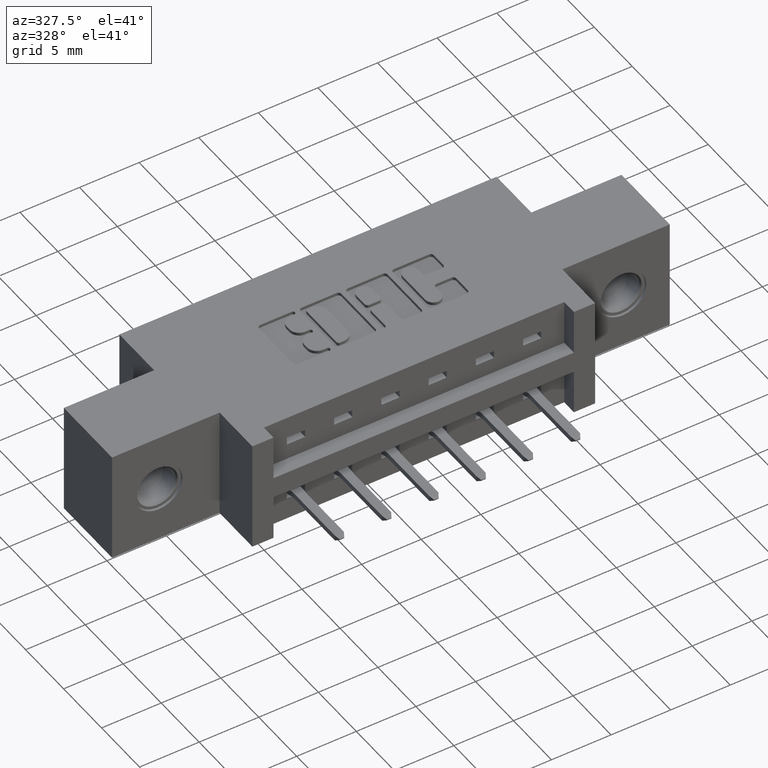
[diagram: clean part render]
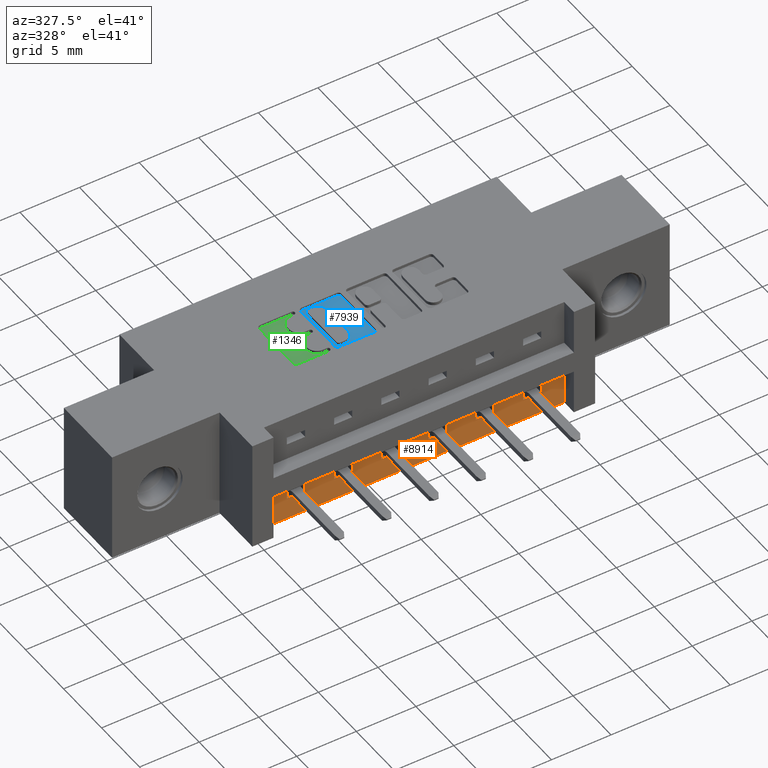
[diagram: same view with three faces highlighted in distinct colors, each labeled with its STEP entity id]
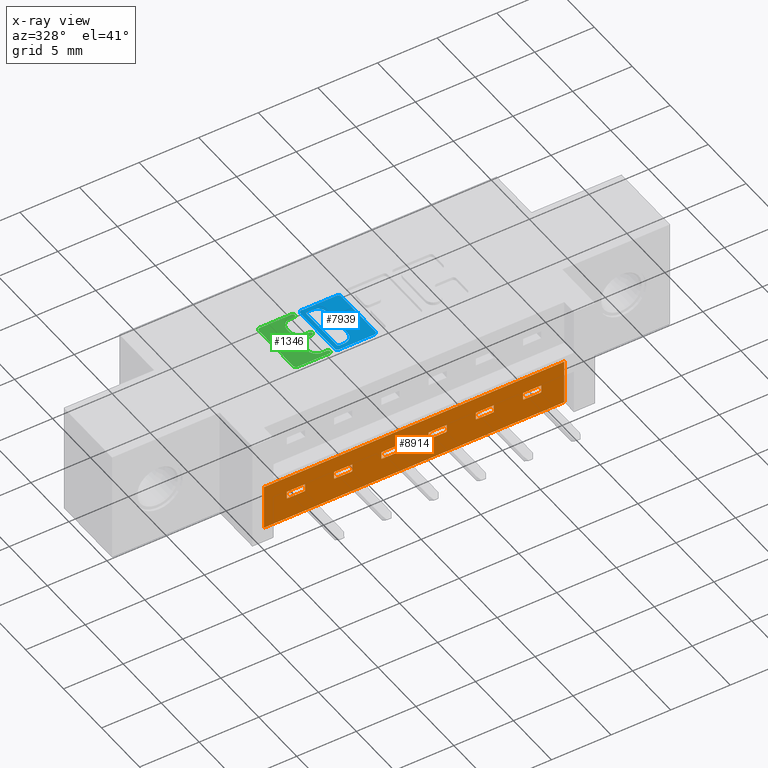
[diagram: x-ray of the same camera — body ghosted, the three highlighted faces saturated]
A machine part, auxiliary view with three faces highlighted in distinct colors.
The next image is the same camera in x-ray (body ghosted, the three faces saturated) — at least one of them is partly hidden behind the body in this view.
Their STEP definitions:

[orange] entity #8914 — the highlighted planar face has unit normal (0, -1, 0).
#85 = ORIENTED_EDGE ( 'NONE', *, *, #4961, .F. ) ;
#175 = FACE_BOUND ( 'NONE', #7844, .T. ) ;
#189 = EDGE_CURVE ( 'NONE', #8327, #6333, #3907, .T. ) ;
#239 = VECTOR ( 'NONE', #3578, 39.37007874015748100 ) ;
#342 = LINE ( 'NONE', #4600, #849 ) ;
#393 = CARTESIAN_POINT ( 'NONE',  ( 1.184999999999999800, 0.05000000000000001000, -0.2725000000000000800 ) ) ;
#444 = ORIENTED_EDGE ( 'NONE', *, *, #1200, .T. ) ;
#453 = ORIENTED_EDGE ( 'NONE', *, *, #10544, .F. ) ;
#467 = VECTOR ( 'NONE', #9566, 39.37007874015748100 ) ;
#469 = VECTOR ( 'NONE', #641, 39.37007874015748100 ) ;
#521 = CARTESIAN_POINT ( 'NONE',  ( 0.5610000000000000500, 0.05000000000000000300, -0.3700000000000000000 ) ) ;
#583 = DIRECTION ( 'NONE',  ( 0.0000000000000000000, 0.0000000000000000000, 1.000000000000000000 ) ) ;
#599 = LINE ( 'NONE', #3869, #5503 ) ;
#641 = DIRECTION ( 'NONE',  ( 0.0000000000000000000, 0.0000000000000000000, 1.000000000000000000 ) ) ;
#723 = CARTESIAN_POINT ( 'NONE',  ( 0.9689999999999998600, 0.05000000000000000300, -0.3700000000000000000 ) ) ;
#728 = EDGE_CURVE ( 'NONE', #9465, #3783, #7676, .T. ) ;
#781 = VECTOR ( 'NONE', #2667, 39.37007874015748100 ) ;
#788 = FACE_BOUND ( 'NONE', #4320, .T. ) ;
#812 = VERTEX_POINT ( 'NONE', #6291 ) ;
#849 = VECTOR ( 'NONE', #2964, 39.37007874015748100 ) ;
#906 = CARTESIAN_POINT ( 'NONE',  ( 1.340999999999999700, 0.05000000000000000300, -0.3700000000000000000 ) ) ;
#922 = DIRECTION ( 'NONE',  ( -1.000000000000000000, 0.0000000000000000000, 0.0000000000000000000 ) ) ;
#941 = VERTEX_POINT ( 'NONE', #6705 ) ;
#959 = VERTEX_POINT ( 'NONE', #8199 ) ;
#1058 = EDGE_CURVE ( 'NONE', #7039, #1923, #1563, .T. ) ;
#1082 = LINE ( 'NONE', #1293, #4989 ) ;
#1083 = CARTESIAN_POINT ( 'NONE',  ( 0.8730000000000000000, 0.05000000000000001000, -0.2725000000000000800 ) ) ;
#1200 = EDGE_CURVE ( 'NONE', #1526, #7863, #4757, .T. ) ;
#1241 = VERTEX_POINT ( 'NONE', #3381 ) ;
#1256 = VECTOR ( 'NONE', #7396, 39.37007874015748100 ) ;
#1290 = CARTESIAN_POINT ( 'NONE',  ( 0.8730000000000000000, 0.05000000000000000300, -0.2975000000000001000 ) ) ;
#1293 = CARTESIAN_POINT ( 'NONE',  ( 1.417000000000000700, 0.05000000000000000300, -0.2975000000000000400 ) ) ;
#1312 = CARTESIAN_POINT ( 'NONE',  ( 0.8730000000000000000, 0.05000000000000000300, -0.3700000000000000000 ) ) ;
#1358 = VECTOR ( 'NONE', #1429, 39.37007874015748100 ) ;
#1359 = CARTESIAN_POINT ( 'NONE',  ( 0.7170000000000000800, 0.05000000000000000300, -0.3700000000000000000 ) ) ;
#1371 = DIRECTION ( 'NONE',  ( 0.0000000000000000000, 0.0000000000000000000, 1.000000000000000000 ) ) ;
#1411 = CARTESIAN_POINT ( 'NONE',  ( 1.417000000000000700, 0.05000000000000000300, -0.3700000000000000000 ) ) ;
#1429 = DIRECTION ( 'NONE',  ( -1.000000000000000000, 0.0000000000000000000, 0.0000000000000000000 ) ) ;
#1469 = ORIENTED_EDGE ( 'NONE', *, *, #3793, .F. ) ;
#1526 = VERTEX_POINT ( 'NONE', #7257 ) ;
#1541 = VERTEX_POINT ( 'NONE', #10451 ) ;
#1563 = LINE ( 'NONE', #3797, #6028 ) ;
#1586 = LINE ( 'NONE', #1766, #6062 ) ;
#1624 = CARTESIAN_POINT ( 'NONE',  ( 1.028999999999999900, 0.05000000000000000300, -0.2975000000000001000 ) ) ;
#1676 = EDGE_CURVE ( 'NONE', #9972, #812, #7155, .T. ) ;
#1694 = ORIENTED_EDGE ( 'NONE', *, *, #5257, .F. ) ;
#1728 = DIRECTION ( 'NONE',  ( -1.000000000000000000, 0.0000000000000000000, 0.0000000000000000000 ) ) ;
#1766 = CARTESIAN_POINT ( 'NONE',  ( 1.417000000000000700, 0.05000000000000000300, -0.2725000000000000200 ) ) ;
#1795 = LINE ( 'NONE', #9210, #239 ) ;
#1921 = EDGE_CURVE ( 'NONE', #6024, #10306, #9334, .T. ) ;
#1923 = VERTEX_POINT ( 'NONE', #1624 ) ;
#1974 = EDGE_CURVE ( 'NONE', #1923, #6407, #4737, .T. ) ;
#2078 = ORIENTED_EDGE ( 'NONE', *, *, #8127, .T. ) ;
#2114 = VECTOR ( 'NONE', #10157, 39.37007874015748100 ) ;
#2158 = EDGE_CURVE ( 'NONE', #7863, #8327, #1795, .T. ) ;
#2213 = DIRECTION ( 'NONE',  ( 1.000000000000000000, 0.0000000000000000000, 0.0000000000000000000 ) ) ;
#2262 = DIRECTION ( 'NONE',  ( 0.0000000000000000000, -0.0000000000000000000, -1.000000000000000000 ) ) ;
#2283 = LINE ( 'NONE', #10511, #8630 ) ;
#2319 = CARTESIAN_POINT ( 'NONE',  ( 1.028999999999999900, 0.05000000000000000300, -0.3700000000000000000 ) ) ;
#2362 = EDGE_CURVE ( 'NONE', #7039, #4821, #4466, .T. ) ;
#2450 = ORIENTED_EDGE ( 'NONE', *, *, #1974, .F. ) ;
#2469 = EDGE_CURVE ( 'NONE', #3277, #9509, #342, .T. ) ;
#2514 = FACE_BOUND ( 'NONE', #6343, .T. ) ;
#2526 = CARTESIAN_POINT ( 'NONE',  ( 0.4249999999999999900, 0.05000000000000000300, -0.2200000000000000000 ) ) ;
#2550 = VERTEX_POINT ( 'NONE', #8972 ) ;
#2600 = CARTESIAN_POINT ( 'NONE',  ( 1.124999999999999800, 0.05000000000000000300, -0.3700000000000000000 ) ) ;
#2667 = DIRECTION ( 'NONE',  ( 0.0000000000000000000, 0.0000000000000000000, 1.000000000000000000 ) ) ;
#2681 = VECTOR ( 'NONE', #3947, 39.37007874015748100 ) ;
#2724 = EDGE_CURVE ( 'NONE', #941, #9972, #1082, .T. ) ;
#2746 = VECTOR ( 'NONE', #7854, 39.37007874015748100 ) ;
#2798 = EDGE_CURVE ( 'NONE', #6024, #2550, #6865, .T. ) ;
#2867 = CARTESIAN_POINT ( 'NONE',  ( 0.5010000000000001100, 0.05000000000000001000, -0.2725000000000000800 ) ) ;
#2914 = CARTESIAN_POINT ( 'NONE',  ( 0.4249999999999999900, 0.05000000000000000300, -0.3700000000000000000 ) ) ;
#2920 = CARTESIAN_POINT ( 'NONE',  ( 1.280999999999999700, 0.05000000000000001000, -0.2725000000000000200 ) ) ;
#2964 = DIRECTION ( 'NONE',  ( 0.0000000000000000000, 0.0000000000000000000, 1.000000000000000000 ) ) ;
#3029 = CARTESIAN_POINT ( 'NONE',  ( 1.280999999999999700, 0.05000000000000000300, -0.3700000000000000000 ) ) ;
#3166 = ORIENTED_EDGE ( 'NONE', *, *, #2362, .T. ) ;
#3189 = DIRECTION ( 'NONE',  ( 0.0000000000000000000, -1.000000000000000000, 0.0000000000000000000 ) ) ;
#3217 = ORIENTED_EDGE ( 'NONE', *, *, #2724, .F. ) ;
#3277 = VERTEX_POINT ( 'NONE', #8759 ) ;
#3286 = EDGE_CURVE ( 'NONE', #3658, #9509, #3563, .T. ) ;
#3309 = DIRECTION ( 'NONE',  ( 1.000000000000000000, 0.0000000000000000000, 0.0000000000000000000 ) ) ;
#3315 = EDGE_CURVE ( 'NONE', #6333, #1526, #8263, .T. ) ;
#3326 = EDGE_CURVE ( 'NONE', #1241, #9465, #6994, .T. ) ;
#3381 = CARTESIAN_POINT ( 'NONE',  ( 0.7170000000000000800, 0.05000000000000000300, -0.2975000000000001000 ) ) ;
#3563 = LINE ( 'NONE', #4717, #1358 ) ;
#3578 = DIRECTION ( 'NONE',  ( -1.000000000000000000, -0.0000000000000000000, -0.0000000000000000000 ) ) ;
#3634 = CARTESIAN_POINT ( 'NONE',  ( 1.417000000000000700, 0.05000000000000000300, -0.2725000000000000200 ) ) ;
#3658 = VERTEX_POINT ( 'NONE', #7862 ) ;
#3757 = VECTOR ( 'NONE', #922, 39.37007874015748100 ) ;
#3782 = VECTOR ( 'NONE', #3309, 39.37007874015748100 ) ;
#3783 = VERTEX_POINT ( 'NONE', #6366 ) ;
#3793 = EDGE_CURVE ( 'NONE', #3277, #8268, #2283, .T. ) ;
#3797 = CARTESIAN_POINT ( 'NONE',  ( 1.417000000000000700, 0.05000000000000000300, -0.2975000000000001000 ) ) ;
#3869 = CARTESIAN_POINT ( 'NONE',  ( 0.6570000000000000300, 0.05000000000000000300, -0.3700000000000000000 ) ) ;
#3870 = ORIENTED_EDGE ( 'NONE', *, *, #1921, .F. ) ;
#3907 = LINE ( 'NONE', #2914, #7687 ) ;
#3947 = DIRECTION ( 'NONE',  ( 0.0000000000000000000, 0.0000000000000000000, 1.000000000000000000 ) ) ;
#4077 = ORIENTED_EDGE ( 'NONE', *, *, #6735, .F. ) ;
#4186 = CARTESIAN_POINT ( 'NONE',  ( 1.184999999999999800, 0.05000000000000000300, -0.3700000000000000000 ) ) ;
#4228 = EDGE_LOOP ( 'NONE', ( #3217, #6439, #1694, #8819 ) ) ;
#4316 = ORIENTED_EDGE ( 'NONE', *, *, #8039, .F. ) ;
#4320 = EDGE_LOOP ( 'NONE', ( #4464, #3166, #7337, #2450 ) ) ;
#4396 = ORIENTED_EDGE ( 'NONE', *, *, #8298, .F. ) ;
#4464 = ORIENTED_EDGE ( 'NONE', *, *, #1058, .F. ) ;
#4466 = LINE ( 'NONE', #723, #9970 ) ;
#4547 = LINE ( 'NONE', #2600, #781 ) ;
#4581 = DIRECTION ( 'NONE',  ( 0.0000000000000000000, 0.0000000000000000000, 1.000000000000000000 ) ) ;
#4600 = CARTESIAN_POINT ( 'NONE',  ( 0.5010000000000001100, 0.05000000000000000300, -0.3700000000000000000 ) ) ;
#4639 = LINE ( 'NONE', #9937, #3757 ) ;
#4701 = EDGE_CURVE ( 'NONE', #6487, #959, #4547, .T. ) ;
#4717 = CARTESIAN_POINT ( 'NONE',  ( 1.417000000000000700, 0.05000000000000000300, -0.2725000000000000800 ) ) ;
#4737 = LINE ( 'NONE', #2319, #469 ) ;
#4757 = LINE ( 'NONE', #1411, #7289 ) ;
#4821 = VERTEX_POINT ( 'NONE', #5979 ) ;
#4836 = EDGE_LOOP ( 'NONE', ( #3870, #9392, #85, #4316 ) ) ;
#4961 = EDGE_CURVE ( 'NONE', #7479, #2550, #5306, .T. ) ;
#4989 = VECTOR ( 'NONE', #7027, 39.37007874015748100 ) ;
#5005 = DIRECTION ( 'NONE',  ( 0.0000000000000000000, 0.0000000000000000000, 1.000000000000000000 ) ) ;
#5032 = CARTESIAN_POINT ( 'NONE',  ( 1.417000000000000700, 0.05000000000000000300, -0.2975000000000001000 ) ) ;
#5100 = EDGE_CURVE ( 'NONE', #1541, #1241, #8073, .T. ) ;
#5107 = EDGE_CURVE ( 'NONE', #6407, #4821, #1586, .T. ) ;
#5170 = EDGE_LOOP ( 'NONE', ( #5304, #444, #8490, #9422 ) ) ;
#5257 = EDGE_CURVE ( 'NONE', #812, #5297, #7572, .T. ) ;
#5271 = VECTOR ( 'NONE', #8776, 39.37007874015748100 ) ;
#5297 = VERTEX_POINT ( 'NONE', #2920 ) ;
#5304 = ORIENTED_EDGE ( 'NONE', *, *, #3315, .T. ) ;
#5306 = LINE ( 'NONE', #3634, #2114 ) ;
#5321 = AXIS2_PLACEMENT_3D ( 'NONE', #6307, #3189, #2262 ) ;
#5385 = EDGE_CURVE ( 'NONE', #941, #5297, #8719, .T. ) ;
#5483 = DIRECTION ( 'NONE',  ( 0.0000000000000000000, 0.0000000000000000000, 1.000000000000000000 ) ) ;
#5503 = VECTOR ( 'NONE', #583, 39.37007874015748100 ) ;
#5660 = VECTOR ( 'NONE', #4581, 39.37007874015748100 ) ;
#5742 = VECTOR ( 'NONE', #8720, 39.37007874015748100 ) ;
#5766 = VECTOR ( 'NONE', #10508, 39.37007874015748100 ) ;
#5926 = VERTEX_POINT ( 'NONE', #393 ) ;
#5979 = CARTESIAN_POINT ( 'NONE',  ( 0.9689999999999998600, 0.05000000000000001000, -0.2725000000000000800 ) ) ;
#6024 = VERTEX_POINT ( 'NONE', #6214 ) ;
#6028 = VECTOR ( 'NONE', #8531, 39.37007874015748100 ) ;
#6062 = VECTOR ( 'NONE', #1728, 39.37007874015748100 ) ;
#6098 = EDGE_CURVE ( 'NONE', #8268, #3658, #6539, .T. ) ;
#6214 = CARTESIAN_POINT ( 'NONE',  ( 0.8129999999999999400, 0.05000000000000014800, -0.2975000000000001000 ) ) ;
#6229 = DIRECTION ( 'NONE',  ( -1.000000000000000000, 0.0000000000000000000, 0.0000000000000000000 ) ) ;
#6283 = LINE ( 'NONE', #9695, #5271 ) ;
#6291 = CARTESIAN_POINT ( 'NONE',  ( 1.340999999999999700, 0.05000000000000001000, -0.2725000000000000200 ) ) ;
#6307 = CARTESIAN_POINT ( 'NONE',  ( 1.417000000000000700, 0.05000000000000000300, -0.3700000000000000000 ) ) ;
#6318 = FACE_BOUND ( 'NONE', #4228, .T. ) ;
#6333 = VERTEX_POINT ( 'NONE', #7215 ) ;
#6343 = EDGE_LOOP ( 'NONE', ( #9918, #2078, #9357, #7222 ) ) ;
#6364 = VECTOR ( 'NONE', #1371, 39.37007874015748100 ) ;
#6366 = CARTESIAN_POINT ( 'NONE',  ( 0.6570000000000000300, 0.05000000000000001000, -0.2725000000000000800 ) ) ;
#6405 = CARTESIAN_POINT ( 'NONE',  ( 1.340999999999999700, 0.05000000000000000300, -0.2975000000000000400 ) ) ;
#6407 = VERTEX_POINT ( 'NONE', #10528 ) ;
#6439 = ORIENTED_EDGE ( 'NONE', *, *, #5385, .T. ) ;
#6487 = VERTEX_POINT ( 'NONE', #9108 ) ;
#6539 = LINE ( 'NONE', #521, #5660 ) ;
#6705 = CARTESIAN_POINT ( 'NONE',  ( 1.280999999999999700, 0.05000000000000014800, -0.2975000000000000400 ) ) ;
#6735 = EDGE_CURVE ( 'NONE', #9224, #5926, #6793, .T. ) ;
#6793 = LINE ( 'NONE', #4186, #9235 ) ;
#6865 = LINE ( 'NONE', #8697, #6364 ) ;
#6961 = DIRECTION ( 'NONE',  ( -0.0000000000000000000, -0.0000000000000000000, -1.000000000000000000 ) ) ;
#6987 = ORIENTED_EDGE ( 'NONE', *, *, #4701, .T. ) ;
#6994 = LINE ( 'NONE', #1359, #2681 ) ;
#7027 = DIRECTION ( 'NONE',  ( 1.000000000000000000, 0.0000000000000000000, 0.0000000000000000000 ) ) ;
#7030 = CARTESIAN_POINT ( 'NONE',  ( 1.417000000000000700, 0.05000000000000000300, -0.2725000000000000200 ) ) ;
#7039 = VERTEX_POINT ( 'NONE', #8726 ) ;
#7155 = LINE ( 'NONE', #906, #1256 ) ;
#7171 = CARTESIAN_POINT ( 'NONE',  ( 0.5610000000000000500, 0.05000000000000000300, -0.2975000000000001000 ) ) ;
#7205 = FACE_BOUND ( 'NONE', #7339, .T. ) ;
#7215 = CARTESIAN_POINT ( 'NONE',  ( 0.4249999999999999900, 0.05000000000000000300, -0.3700000000000000000 ) ) ;
#7222 = ORIENTED_EDGE ( 'NONE', *, *, #3326, .F. ) ;
#7257 = CARTESIAN_POINT ( 'NONE',  ( 1.417000000000000700, 0.05000000000000000300, -0.3700000000000000000 ) ) ;
#7272 = LINE ( 'NONE', #1312, #467 ) ;
#7289 = VECTOR ( 'NONE', #5483, 39.37007874015748100 ) ;
#7311 = VECTOR ( 'NONE', #6229, 39.37007874015748100 ) ;
#7337 = ORIENTED_EDGE ( 'NONE', *, *, #5107, .F. ) ;
#7338 = DIRECTION ( 'NONE',  ( 0.0000000000000000000, 0.0000000000000000000, 1.000000000000000000 ) ) ;
#7339 = EDGE_LOOP ( 'NONE', ( #4396, #6987, #453, #4077 ) ) ;
#7396 = DIRECTION ( 'NONE',  ( 0.0000000000000000000, 0.0000000000000000000, 1.000000000000000000 ) ) ;
#7479 = VERTEX_POINT ( 'NONE', #1083 ) ;
#7572 = LINE ( 'NONE', #7030, #2746 ) ;
#7676 = LINE ( 'NONE', #7885, #7311 ) ;
#7687 = VECTOR ( 'NONE', #6961, 39.37007874015748100 ) ;
#7730 = CARTESIAN_POINT ( 'NONE',  ( 0.7170000000000000800, 0.05000000000000001000, -0.2725000000000000800 ) ) ;
#7844 = EDGE_LOOP ( 'NONE', ( #1469, #8904, #8634, #10229 ) ) ;
#7854 = DIRECTION ( 'NONE',  ( -1.000000000000000000, 0.0000000000000000000, 0.0000000000000000000 ) ) ;
#7862 = CARTESIAN_POINT ( 'NONE',  ( 0.5610000000000000500, 0.05000000000000001000, -0.2725000000000000800 ) ) ;
#7863 = VERTEX_POINT ( 'NONE', #10378 ) ;
#7884 = DIRECTION ( 'NONE',  ( 0.0000000000000000000, 0.0000000000000000000, 1.000000000000000000 ) ) ;
#7885 = CARTESIAN_POINT ( 'NONE',  ( 1.417000000000000700, 0.05000000000000000300, -0.2725000000000000800 ) ) ;
#8002 = PLANE ( 'NONE',  #5321 ) ;
#8039 = EDGE_CURVE ( 'NONE', #10306, #7479, #7272, .T. ) ;
#8073 = LINE ( 'NONE', #5032, #3782 ) ;
#8127 = EDGE_CURVE ( 'NONE', #1541, #3783, #599, .T. ) ;
#8199 = CARTESIAN_POINT ( 'NONE',  ( 1.124999999999999800, 0.05000000000000001000, -0.2725000000000000800 ) ) ;
#8263 = LINE ( 'NONE', #10486, #5742 ) ;
#8268 = VERTEX_POINT ( 'NONE', #7171 ) ;
#8298 = EDGE_CURVE ( 'NONE', #6487, #9224, #6283, .T. ) ;
#8327 = VERTEX_POINT ( 'NONE', #2526 ) ;
#8490 = ORIENTED_EDGE ( 'NONE', *, *, #2158, .T. ) ;
#8531 = DIRECTION ( 'NONE',  ( 1.000000000000000000, 0.0000000000000000000, 0.0000000000000000000 ) ) ;
#8630 = VECTOR ( 'NONE', #2213, 39.37007874015748100 ) ;
#8634 = ORIENTED_EDGE ( 'NONE', *, *, #3286, .F. ) ;
#8697 = CARTESIAN_POINT ( 'NONE',  ( 0.8129999999999999400, 0.05000000000000000300, -0.3700000000000000000 ) ) ;
#8719 = LINE ( 'NONE', #3029, #10142 ) ;
#8720 = DIRECTION ( 'NONE',  ( 1.000000000000000000, 0.0000000000000000000, 0.0000000000000000000 ) ) ;
#8726 = CARTESIAN_POINT ( 'NONE',  ( 0.9689999999999998600, 0.05000000000000014800, -0.2975000000000001000 ) ) ;
#8735 = FACE_BOUND ( 'NONE', #4836, .T. ) ;
#8759 = CARTESIAN_POINT ( 'NONE',  ( 0.5010000000000001100, 0.05000000000000014800, -0.2975000000000001000 ) ) ;
#8776 = DIRECTION ( 'NONE',  ( 1.000000000000000000, 0.0000000000000000000, 0.0000000000000000000 ) ) ;
#8811 = CARTESIAN_POINT ( 'NONE',  ( 1.184999999999999800, 0.05000000000000000300, -0.2975000000000001000 ) ) ;
#8819 = ORIENTED_EDGE ( 'NONE', *, *, #1676, .F. ) ;
#8820 = CARTESIAN_POINT ( 'NONE',  ( 1.417000000000000700, 0.05000000000000000300, -0.2975000000000001000 ) ) ;
#8904 = ORIENTED_EDGE ( 'NONE', *, *, #2469, .T. ) ;
#8914 = ADVANCED_FACE ( 'NONE', ( #9011, #175, #2514, #8735, #788, #7205, #6318 ), #8002, .T. ) ;
#8972 = CARTESIAN_POINT ( 'NONE',  ( 0.8129999999999999400, 0.05000000000000001000, -0.2725000000000000800 ) ) ;
#9011 = FACE_OUTER_BOUND ( 'NONE', #5170, .T. ) ;
#9108 = CARTESIAN_POINT ( 'NONE',  ( 1.124999999999999800, 0.05000000000000014800, -0.2975000000000001000 ) ) ;
#9210 = CARTESIAN_POINT ( 'NONE',  ( 0.4249999999999999900, 0.05000000000000000300, -0.2200000000000000000 ) ) ;
#9224 = VERTEX_POINT ( 'NONE', #8811 ) ;
#9235 = VECTOR ( 'NONE', #5005, 39.37007874015748100 ) ;
#9334 = LINE ( 'NONE', #8820, #5766 ) ;
#9357 = ORIENTED_EDGE ( 'NONE', *, *, #728, .F. ) ;
#9392 = ORIENTED_EDGE ( 'NONE', *, *, #2798, .T. ) ;
#9422 = ORIENTED_EDGE ( 'NONE', *, *, #189, .T. ) ;
#9465 = VERTEX_POINT ( 'NONE', #7730 ) ;
#9509 = VERTEX_POINT ( 'NONE', #2867 ) ;
#9566 = DIRECTION ( 'NONE',  ( 0.0000000000000000000, 0.0000000000000000000, 1.000000000000000000 ) ) ;
#9695 = CARTESIAN_POINT ( 'NONE',  ( 1.417000000000000700, 0.05000000000000000300, -0.2975000000000001000 ) ) ;
#9918 = ORIENTED_EDGE ( 'NONE', *, *, #5100, .F. ) ;
#9937 = CARTESIAN_POINT ( 'NONE',  ( 1.417000000000000700, 0.05000000000000000300, -0.2725000000000000200 ) ) ;
#9970 = VECTOR ( 'NONE', #7338, 39.37007874015748100 ) ;
#9972 = VERTEX_POINT ( 'NONE', #6405 ) ;
#10142 = VECTOR ( 'NONE', #7884, 39.37007874015748100 ) ;
#10157 = DIRECTION ( 'NONE',  ( -1.000000000000000000, 0.0000000000000000000, 0.0000000000000000000 ) ) ;
#10229 = ORIENTED_EDGE ( 'NONE', *, *, #6098, .F. ) ;
#10306 = VERTEX_POINT ( 'NONE', #1290 ) ;
#10378 = CARTESIAN_POINT ( 'NONE',  ( 1.417000000000000700, 0.05000000000000000300, -0.2200000000000000000 ) ) ;
#10451 = CARTESIAN_POINT ( 'NONE',  ( 0.6570000000000000300, 0.05000000000000014800, -0.2975000000000001000 ) ) ;
#10486 = CARTESIAN_POINT ( 'NONE',  ( 0.4249999999999999900, 0.05000000000000000300, -0.3700000000000000000 ) ) ;
#10508 = DIRECTION ( 'NONE',  ( 1.000000000000000000, 0.0000000000000000000, 0.0000000000000000000 ) ) ;
#10511 = CARTESIAN_POINT ( 'NONE',  ( 1.417000000000000700, 0.05000000000000000300, -0.2975000000000001000 ) ) ;
#10528 = CARTESIAN_POINT ( 'NONE',  ( 1.028999999999999900, 0.05000000000000001000, -0.2725000000000000800 ) ) ;
#10544 = EDGE_CURVE ( 'NONE', #5926, #959, #4639, .T. ) ;

[blue] entity #7939 — the highlighted planar face has unit normal (0, 0, 1).
#31 = EDGE_CURVE ( 'NONE', #806, #3173, #8863, .T. ) ;
#35 = EDGE_CURVE ( 'NONE', #816, #8857, #8072, .T. ) ;
#106 = EDGE_CURVE ( 'NONE', #807, #3267, #9252, .T. ) ;
#194 = ORIENTED_EDGE ( 'NONE', *, *, #2576, .T. ) ;
#261 = DIRECTION ( 'NONE',  ( -0.0000000000000000000, 0.0000000000000000000, 1.000000000000000000 ) ) ;
#307 = VERTEX_POINT ( 'NONE', #8356 ) ;
#329 = CARTESIAN_POINT ( 'NONE',  ( 0.9025956183678963700, 0.4231567020380504500, -0.01000000000000000000 ) ) ;
#362 = DIRECTION ( 'NONE',  ( 1.000000000000000000, 0.0000000000000000000, 0.0000000000000000000 ) ) ;
#529 = CARTESIAN_POINT ( 'NONE',  ( 0.9124112885716693100, 0.2366589681657893500, -0.01000000000000000000 ) ) ;
#542 = AXIS2_PLACEMENT_3D ( 'NONE', #8433, #3650, #1090 ) ;
#630 = CARTESIAN_POINT ( 'NONE',  ( 0.0000000000000000000, 0.4231567020380504500, -0.01000000000000000000 ) ) ;
#806 = VERTEX_POINT ( 'NONE', #8738 ) ;
#807 = VERTEX_POINT ( 'NONE', #5735 ) ;
#816 = VERTEX_POINT ( 'NONE', #2172 ) ;
#863 = DIRECTION ( 'NONE',  ( 0.0000000000000000000, -1.000000000000000000, 0.0000000000000000000 ) ) ;
#893 = DIRECTION ( 'NONE',  ( 1.000000000000000000, 0.0000000000000000000, 0.0000000000000000000 ) ) ;
#919 = CARTESIAN_POINT ( 'NONE',  ( 0.8118006689826737800, 0.2719953808994839400, -0.01000000000000000000 ) ) ;
#957 = CARTESIAN_POINT ( 'NONE',  ( 0.9124112885716693100, 0.0000000000000000000, -0.01000000000000000000 ) ) ;
#990 = DIRECTION ( 'NONE',  ( 1.000000000000000000, 0.0000000000000000000, 0.0000000000000000000 ) ) ;
#1000 = VECTOR ( 'NONE', #3126, 39.37007874015748100 ) ;
#1010 = VECTOR ( 'NONE', #3175, 39.37007874015748100 ) ;
#1090 = DIRECTION ( 'NONE',  ( 1.000000000000000000, 0.0000000000000000000, 0.0000000000000000000 ) ) ;
#1271 = LINE ( 'NONE', #6081, #9881 ) ;
#1487 = DIRECTION ( 'NONE',  ( -1.000000000000000000, 0.0000000000000000000, 0.0000000000000000000 ) ) ;
#1662 = DIRECTION ( 'NONE',  ( 0.0000000000000000000, 1.000000000000000000, -0.0000000000000000000 ) ) ;
#1790 = VECTOR ( 'NONE', #1662, 39.37007874015748100 ) ;
#1911 = VERTEX_POINT ( 'NONE', #2392 ) ;
#1953 = CIRCLE ( 'NONE', #5511, 0.03141014465217017300 ) ;
#2058 = DIRECTION ( 'NONE',  ( 1.000000000000000000, 0.0000000000000000000, 0.0000000000000000000 ) ) ;
#2146 = CARTESIAN_POINT ( 'NONE',  ( 0.9124112885716693100, 0.4133410318342095000, -0.01000000000000000000 ) ) ;
#2153 = ORIENTED_EDGE ( 'NONE', *, *, #4679, .T. ) ;
#2172 = CARTESIAN_POINT ( 'NONE',  ( 0.7906969780444990100, 0.2474562053899769000, -0.01000000000000000000 ) ) ;
#2175 = DIRECTION ( 'NONE',  ( -0.0000000000000000000, 0.0000000000000000000, 1.000000000000000000 ) ) ;
#2392 = CARTESIAN_POINT ( 'NONE',  ( 0.7867707099629762700, 0.2268432979619826000, -0.01000000000000000000 ) ) ;
#2576 = EDGE_CURVE ( 'NONE', #816, #6644, #3983, .T. ) ;
#2736 = CARTESIAN_POINT ( 'NONE',  ( 0.9025956183678624000, 0.2366589681657893500, -0.01000000000000000000 ) ) ;
#2753 = LINE ( 'NONE', #957, #4681 ) ;
#2799 = LINE ( 'NONE', #5384, #4344 ) ;
#3080 = CARTESIAN_POINT ( 'NONE',  ( 0.7975679471871667300, 0.4094147637527239000, -0.01000000000000000000 ) ) ;
#3126 = DIRECTION ( 'NONE',  ( 0.0000000000000000000, -1.000000000000000000, 0.0000000000000000000 ) ) ;
#3139 = EDGE_CURVE ( 'NONE', #8146, #4590, #2799, .T. ) ;
#3173 = VERTEX_POINT ( 'NONE', #7924 ) ;
#3175 = DIRECTION ( 'NONE',  ( -1.000000000000000000, 0.0000000000000000000, 0.0000000000000000000 ) ) ;
#3267 = VERTEX_POINT ( 'NONE', #529 ) ;
#3348 = AXIS2_PLACEMENT_3D ( 'NONE', #3582, #5259, #9362 ) ;
#3398 = DIRECTION ( 'NONE',  ( 1.000000000000000000, 0.0000000000000000000, 0.0000000000000000000 ) ) ;
#3409 = AXIS2_PLACEMENT_3D ( 'NONE', #7570, #5826, #3398 ) ;
#3544 = EDGE_LOOP ( 'NONE', ( #9795, #5496, #8487, #8766, #10290, #10050, #5580, #194 ) ) ;
#3582 = CARTESIAN_POINT ( 'NONE',  ( 0.0000000000000000000, 0.0000000000000000000, -0.01000000000000000000 ) ) ;
#3650 = DIRECTION ( 'NONE',  ( -0.0000000000000000000, 0.0000000000000000000, 1.000000000000000000 ) ) ;
#3676 = VERTEX_POINT ( 'NONE', #2146 ) ;
#3691 = AXIS2_PLACEMENT_3D ( 'NONE', #2736, #261, #362 ) ;
#3697 = DIRECTION ( 'NONE',  ( 1.000000000000000000, 0.0000000000000000000, 0.0000000000000000000 ) ) ;
#3983 = LINE ( 'NONE', #5699, #1790 ) ;
#3992 = ORIENTED_EDGE ( 'NONE', *, *, #6138, .T. ) ;
#4027 = ORIENTED_EDGE ( 'NONE', *, *, #7912, .T. ) ;
#4046 = CARTESIAN_POINT ( 'NONE',  ( 0.7906969780444990100, 0.4025437946100561800, -0.01000000000000000000 ) ) ;
#4268 = DIRECTION ( 'NONE',  ( -0.0000000000000000000, 0.0000000000000000000, 1.000000000000000000 ) ) ;
#4338 = VERTEX_POINT ( 'NONE', #329 ) ;
#4344 = VECTOR ( 'NONE', #5242, 39.37007874015748100 ) ;
#4437 = PLANE ( 'NONE',  #3348 ) ;
#4566 = VERTEX_POINT ( 'NONE', #8965 ) ;
#4578 = AXIS2_PLACEMENT_3D ( 'NONE', #10017, #5941, #990 ) ;
#4590 = VERTEX_POINT ( 'NONE', #8893 ) ;
#4679 = EDGE_CURVE ( 'NONE', #3267, #3676, #2753, .T. ) ;
#4681 = VECTOR ( 'NONE', #9906, 39.37007874015748100 ) ;
#4872 = CIRCLE ( 'NONE', #542, 0.009815670203840902800 ) ;
#4973 = EDGE_LOOP ( 'NONE', ( #2153, #8522, #9253, #4027, #3992, #6978, #8566, #8602 ) ) ;
#4994 = CARTESIAN_POINT ( 'NONE',  ( 0.7975679471871667300, 0.4025437946100561800, -0.01000000000000000000 ) ) ;
#4998 = EDGE_CURVE ( 'NONE', #5962, #1911, #5829, .T. ) ;
#5019 = DIRECTION ( 'NONE',  ( 1.000000000000000000, 0.0000000000000000000, 0.0000000000000000000 ) ) ;
#5085 = EDGE_CURVE ( 'NONE', #8146, #6644, #5683, .T. ) ;
#5176 = VECTOR ( 'NONE', #863, 39.37007874015748100 ) ;
#5194 = CARTESIAN_POINT ( 'NONE',  ( 0.7769550397591695700, 0.4133410318342095000, -0.01000000000000000000 ) ) ;
#5242 = DIRECTION ( 'NONE',  ( 1.000000000000000000, 0.0000000000000000000, 0.0000000000000000000 ) ) ;
#5259 = DIRECTION ( 'NONE',  ( -0.0000000000000000000, 0.0000000000000000000, 1.000000000000000000 ) ) ;
#5384 = CARTESIAN_POINT ( 'NONE',  ( 0.0000000000000000000, 0.4094147637527239000, -0.01000000000000000000 ) ) ;
#5410 = LINE ( 'NONE', #7301, #1000 ) ;
#5496 = ORIENTED_EDGE ( 'NONE', *, *, #3139, .T. ) ;
#5511 = AXIS2_PLACEMENT_3D ( 'NONE', #919, #4268, #5019 ) ;
#5580 = ORIENTED_EDGE ( 'NONE', *, *, #35, .F. ) ;
#5680 = EDGE_CURVE ( 'NONE', #307, #8857, #9763, .T. ) ;
#5683 = CIRCLE ( 'NONE', #6309, 0.006870969142667693000 ) ;
#5699 = CARTESIAN_POINT ( 'NONE',  ( 0.7906969780444990100, 0.0000000000000000000, -0.01000000000000000000 ) ) ;
#5735 = CARTESIAN_POINT ( 'NONE',  ( 0.9025956183678624000, 0.2268432979619826000, -0.01000000000000000000 ) ) ;
#5826 = DIRECTION ( 'NONE',  ( -0.0000000000000000000, 0.0000000000000000000, 1.000000000000000000 ) ) ;
#5829 = CIRCLE ( 'NONE', #10490, 0.009815670203806754800 ) ;
#5941 = DIRECTION ( 'NONE',  ( -0.0000000000000000000, 0.0000000000000000000, 1.000000000000000000 ) ) ;
#5962 = VERTEX_POINT ( 'NONE', #9256 ) ;
#6081 = CARTESIAN_POINT ( 'NONE',  ( 0.0000000000000000000, 0.2268432979619826000, -0.01000000000000000000 ) ) ;
#6138 = EDGE_CURVE ( 'NONE', #10099, #5962, #5410, .T. ) ;
#6309 = AXIS2_PLACEMENT_3D ( 'NONE', #4994, #6607, #893 ) ;
#6500 = EDGE_CURVE ( 'NONE', #307, #3173, #1953, .T. ) ;
#6607 = DIRECTION ( 'NONE',  ( -0.0000000000000000000, 0.0000000000000000000, 1.000000000000000000 ) ) ;
#6641 = CARTESIAN_POINT ( 'NONE',  ( 0.8432108136348439600, 0.0000000000000000000, -0.01000000000000000000 ) ) ;
#6644 = VERTEX_POINT ( 'NONE', #4046 ) ;
#6965 = EDGE_CURVE ( 'NONE', #1911, #807, #1271, .T. ) ;
#6978 = ORIENTED_EDGE ( 'NONE', *, *, #4998, .T. ) ;
#7066 = CARTESIAN_POINT ( 'NONE',  ( 0.7867707099629762700, 0.2366589681657893500, -0.01000000000000000000 ) ) ;
#7301 = CARTESIAN_POINT ( 'NONE',  ( 0.7769550397591695700, 0.0000000000000000000, -0.01000000000000000000 ) ) ;
#7526 = EDGE_CURVE ( 'NONE', #806, #4590, #10120, .T. ) ;
#7570 = CARTESIAN_POINT ( 'NONE',  ( 0.8118006689826720000, 0.3780046191005520000, -0.01000000000000000000 ) ) ;
#7660 = EDGE_CURVE ( 'NONE', #3676, #4338, #8165, .T. ) ;
#7785 = FACE_OUTER_BOUND ( 'NONE', #4973, .T. ) ;
#7912 = EDGE_CURVE ( 'NONE', #4566, #10099, #4872, .T. ) ;
#7920 = DIRECTION ( 'NONE',  ( 1.000000000000000000, 0.0000000000000000000, 0.0000000000000000000 ) ) ;
#7924 = CARTESIAN_POINT ( 'NONE',  ( 0.8432108136348439600, 0.2719953808994839400, -0.01000000000000000000 ) ) ;
#7939 = ADVANCED_FACE ( 'NONE', ( #9204, #7785 ), #4437, .T. ) ;
#7955 = CARTESIAN_POINT ( 'NONE',  ( 0.0000000000000000000, 0.2405852362473136800, -0.01000000000000000000 ) ) ;
#8072 = CIRCLE ( 'NONE', #4578, 0.006870969142663185300 ) ;
#8146 = VERTEX_POINT ( 'NONE', #3080 ) ;
#8165 = CIRCLE ( 'NONE', #8429, 0.009815670203841039800 ) ;
#8356 = CARTESIAN_POINT ( 'NONE',  ( 0.8118006689826737800, 0.2405852362473136800, -0.01000000000000000000 ) ) ;
#8429 = AXIS2_PLACEMENT_3D ( 'NONE', #10274, #9258, #3697 ) ;
#8433 = CARTESIAN_POINT ( 'NONE',  ( 0.7867707099630104600, 0.4133410318342095000, -0.01000000000000000000 ) ) ;
#8487 = ORIENTED_EDGE ( 'NONE', *, *, #7526, .F. ) ;
#8522 = ORIENTED_EDGE ( 'NONE', *, *, #7660, .T. ) ;
#8566 = ORIENTED_EDGE ( 'NONE', *, *, #6965, .T. ) ;
#8602 = ORIENTED_EDGE ( 'NONE', *, *, #106, .T. ) ;
#8738 = CARTESIAN_POINT ( 'NONE',  ( 0.8432108136348439600, 0.3780046191005520000, -0.01000000000000000000 ) ) ;
#8766 = ORIENTED_EDGE ( 'NONE', *, *, #31, .T. ) ;
#8857 = VERTEX_POINT ( 'NONE', #9681 ) ;
#8863 = LINE ( 'NONE', #6641, #5176 ) ;
#8893 = CARTESIAN_POINT ( 'NONE',  ( 0.8118006689826782200, 0.4094147637527239000, -0.01000000000000000000 ) ) ;
#8965 = CARTESIAN_POINT ( 'NONE',  ( 0.7867707099630104600, 0.4231567020380504500, -0.01000000000000000000 ) ) ;
#9204 = FACE_BOUND ( 'NONE', #3544, .T. ) ;
#9229 = EDGE_CURVE ( 'NONE', #4338, #4566, #10538, .T. ) ;
#9252 = CIRCLE ( 'NONE', #3691, 0.009815670203806891800 ) ;
#9253 = ORIENTED_EDGE ( 'NONE', *, *, #9229, .T. ) ;
#9256 = CARTESIAN_POINT ( 'NONE',  ( 0.7769550397591695700, 0.2366589681657893500, -0.01000000000000000000 ) ) ;
#9258 = DIRECTION ( 'NONE',  ( -0.0000000000000000000, 0.0000000000000000000, 1.000000000000000000 ) ) ;
#9362 = DIRECTION ( 'NONE',  ( 1.000000000000000000, 0.0000000000000000000, 0.0000000000000000000 ) ) ;
#9681 = CARTESIAN_POINT ( 'NONE',  ( 0.7975679471871622800, 0.2405852362473136800, -0.01000000000000000000 ) ) ;
#9763 = LINE ( 'NONE', #7955, #1010 ) ;
#9795 = ORIENTED_EDGE ( 'NONE', *, *, #5085, .F. ) ;
#9881 = VECTOR ( 'NONE', #2058, 39.37007874015748100 ) ;
#9906 = DIRECTION ( 'NONE',  ( 0.0000000000000000000, 1.000000000000000000, -0.0000000000000000000 ) ) ;
#10017 = CARTESIAN_POINT ( 'NONE',  ( 0.7975679471871622800, 0.2474562053899769000, -0.01000000000000000000 ) ) ;
#10050 = ORIENTED_EDGE ( 'NONE', *, *, #5680, .T. ) ;
#10099 = VERTEX_POINT ( 'NONE', #5194 ) ;
#10120 = CIRCLE ( 'NONE', #3409, 0.03141014465217194900 ) ;
#10150 = VECTOR ( 'NONE', #1487, 39.37007874015748100 ) ;
#10274 = CARTESIAN_POINT ( 'NONE',  ( 0.9025956183678282000, 0.4133410318342093900, -0.01000000000000000000 ) ) ;
#10290 = ORIENTED_EDGE ( 'NONE', *, *, #6500, .F. ) ;
#10490 = AXIS2_PLACEMENT_3D ( 'NONE', #7066, #2175, #7920 ) ;
#10538 = LINE ( 'NONE', #630, #10150 ) ;

[green] entity #1346 — the highlighted planar face has unit normal (0, 0, 1).
#100 = DIRECTION ( 'NONE',  ( -0.0000000000000000000, 0.0000000000000000000, 1.000000000000000000 ) ) ;
#208 = DIRECTION ( 'NONE',  ( -0.0000000000000000000, 0.0000000000000000000, 1.000000000000000000 ) ) ;
#269 = VECTOR ( 'NONE', #7441, 39.37007874015748100 ) ;
#350 = DIRECTION ( 'NONE',  ( 1.000000000000000000, 0.0000000000000000000, 0.0000000000000000000 ) ) ;
#387 = DIRECTION ( 'NONE',  ( 0.0000000000000000000, 1.000000000000000000, -0.0000000000000000000 ) ) ;
#430 = DIRECTION ( 'NONE',  ( -0.0000000000000000000, 0.0000000000000000000, 1.000000000000000000 ) ) ;
#462 = EDGE_CURVE ( 'NONE', #10318, #3314, #504, .T. ) ;
#489 = DIRECTION ( 'NONE',  ( -1.000000000000000000, 0.0000000000000000000, 0.0000000000000000000 ) ) ;
#504 = CIRCLE ( 'NONE', #680, 0.03141014465217454400 ) ;
#511 = EDGE_CURVE ( 'NONE', #5215, #1091, #5670, .T. ) ;
#585 = ORIENTED_EDGE ( 'NONE', *, *, #4500, .T. ) ;
#680 = AXIS2_PLACEMENT_3D ( 'NONE', #3705, #3742, #4550 ) ;
#706 = VERTEX_POINT ( 'NONE', #10403 ) ;
#725 = VECTOR ( 'NONE', #3492, 39.37007874015748100 ) ;
#1008 = CARTESIAN_POINT ( 'NONE',  ( 0.0000000000000000000, 0.3181290308573562200, -0.01000000000000000000 ) ) ;
#1018 = DIRECTION ( 'NONE',  ( 1.000000000000000000, 0.0000000000000000000, 0.0000000000000000000 ) ) ;
#1091 = VERTEX_POINT ( 'NONE', #6384 ) ;
#1249 = DIRECTION ( 'NONE',  ( 1.000000000000000000, 7.203446383881654600E-015, 0.0000000000000000000 ) ) ;
#1282 = ORIENTED_EDGE ( 'NONE', *, *, #1828, .T. ) ;
#1325 = VERTEX_POINT ( 'NONE', #3054 ) ;
#1346 = ADVANCED_FACE ( 'NONE', ( #7668 ), #3812, .T. ) ;
#1356 = VERTEX_POINT ( 'NONE', #6249 ) ;
#1478 = ORIENTED_EDGE ( 'NONE', *, *, #2654, .T. ) ;
#1536 = DIRECTION ( 'NONE',  ( 1.000000000000000000, 0.0000000000000000000, 0.0000000000000000000 ) ) ;
#1554 = ORIENTED_EDGE ( 'NONE', *, *, #9646, .T. ) ;
#1619 = VERTEX_POINT ( 'NONE', #9709 ) ;
#1688 = CARTESIAN_POINT ( 'NONE',  ( 0.7541336064154146000, 0.2405852362473096300, -0.01000000000000000000 ) ) ;
#1828 = EDGE_CURVE ( 'NONE', #4571, #9846, #4883, .T. ) ;
#1856 = DIRECTION ( 'NONE',  ( 1.000000000000000000, 0.0000000000000000000, 0.0000000000000000000 ) ) ;
#1901 = ORIENTED_EDGE ( 'NONE', *, *, #9327, .F. ) ;
#1971 = LINE ( 'NONE', #9037, #269 ) ;
#2008 = VERTEX_POINT ( 'NONE', #2463 ) ;
#2068 = CIRCLE ( 'NONE', #2716, 0.006870969142663458500 ) ;
#2152 = CARTESIAN_POINT ( 'NONE',  ( -1.634053534412011400E-015, 0.2268432979619796900, -0.01000000000000000000 ) ) ;
#2162 = ORIENTED_EDGE ( 'NONE', *, *, #10029, .T. ) ;
#2191 = EDGE_CURVE ( 'NONE', #10318, #8483, #8018, .T. ) ;
#2274 = DIRECTION ( 'NONE',  ( 0.0000000000000000000, -1.000000000000000000, 0.0000000000000000000 ) ) ;
#2300 = VECTOR ( 'NONE', #2274, 39.37007874015748100 ) ;
#2302 = DIRECTION ( 'NONE',  ( -0.0000000000000000000, 0.0000000000000000000, 1.000000000000000000 ) ) ;
#2373 = ORIENTED_EDGE ( 'NONE', *, *, #4419, .T. ) ;
#2418 = ORIENTED_EDGE ( 'NONE', *, *, #10223, .T. ) ;
#2441 = CIRCLE ( 'NONE', #10541, 0.009815670203805798900 ) ;
#2463 = CARTESIAN_POINT ( 'NONE',  ( 0.6400264404161156700, 0.2366589681657893500, -0.01000000000000000000 ) ) ;
#2654 = EDGE_CURVE ( 'NONE', #2008, #7818, #2441, .T. ) ;
#2716 = AXIS2_PLACEMENT_3D ( 'NONE', #10169, #5288, #350 ) ;
#2733 = EDGE_CURVE ( 'NONE', #9136, #2008, #5876, .T. ) ;
#2935 = ORIENTED_EDGE ( 'NONE', *, *, #8768, .T. ) ;
#2938 = AXIS2_PLACEMENT_3D ( 'NONE', #3824, #10321, #5447 ) ;
#3020 = CARTESIAN_POINT ( 'NONE',  ( 0.7092269153529097100, 0.3632811137948577800, -0.01000000000000000000 ) ) ;
#3032 = LINE ( 'NONE', #2152, #5958 ) ;
#3054 = CARTESIAN_POINT ( 'NONE',  ( 0.7092269153529280300, 0.2719953808994897700, -0.01000000000000000000 ) ) ;
#3118 = CARTESIAN_POINT ( 'NONE',  ( 0.7092269153529280300, 0.2867188862051999700, -0.01000000000000000000 ) ) ;
#3145 = CARTESIAN_POINT ( 'NONE',  ( 0.7406370600051257500, 0.4094147637527351100, -0.01000000000000000000 ) ) ;
#3314 = VERTEX_POINT ( 'NONE', #4648 ) ;
#3343 = VECTOR ( 'NONE', #387, 39.37007874015748100 ) ;
#3426 = AXIS2_PLACEMENT_3D ( 'NONE', #8176, #100, #5825 ) ;
#3466 = ORIENTED_EDGE ( 'NONE', *, *, #10018, .T. ) ;
#3492 = DIRECTION ( 'NONE',  ( -1.000000000000000000, -1.189163988687022500E-013, 0.0000000000000000000 ) ) ;
#3645 = CARTESIAN_POINT ( 'NONE',  ( 0.7610045756779737500, 0.3250000000000197700, -0.01000000000000000000 ) ) ;
#3705 = CARTESIAN_POINT ( 'NONE',  ( 0.7406370600050843400, 0.3632811137948577800, -0.01000000000000000000 ) ) ;
#3742 = DIRECTION ( 'NONE',  ( -0.0000000000000000000, 0.0000000000000000000, 1.000000000000000000 ) ) ;
#3812 = PLANE ( 'NONE',  #10117 ) ;
#3824 = CARTESIAN_POINT ( 'NONE',  ( 0.7541336065353357900, 0.2337142671046473500, -0.01000000000000000000 ) ) ;
#3850 = CARTESIAN_POINT ( 'NONE',  ( 0.7541336065353102500, 0.3250000000000197700, -0.01000000000000000000 ) ) ;
#3883 = DIRECTION ( 'NONE',  ( 1.000000000000000000, 0.0000000000000000000, 0.0000000000000000000 ) ) ;
#3897 = VECTOR ( 'NONE', #489, 39.37007874015748100 ) ;
#3903 = AXIS2_PLACEMENT_3D ( 'NONE', #5130, #208, #5939 ) ;
#3952 = VERTEX_POINT ( 'NONE', #6700 ) ;
#4069 = CIRCLE ( 'NONE', #7462, 0.006870969142648433200 ) ;
#4145 = CARTESIAN_POINT ( 'NONE',  ( 0.7541336065353515500, 0.4162857328953856700, -0.01000000000000000000 ) ) ;
#4177 = VERTEX_POINT ( 'NONE', #3118 ) ;
#4267 = LINE ( 'NONE', #1008, #9107 ) ;
#4419 = EDGE_CURVE ( 'NONE', #7818, #5215, #3032, .T. ) ;
#4500 = EDGE_CURVE ( 'NONE', #9285, #1356, #4069, .T. ) ;
#4550 = DIRECTION ( 'NONE',  ( 1.000000000000000000, 0.0000000000000000000, 0.0000000000000000000 ) ) ;
#4571 = VERTEX_POINT ( 'NONE', #1688 ) ;
#4648 = CARTESIAN_POINT ( 'NONE',  ( 0.7406370600050843400, 0.3318709691426832700, -0.01000000000000000000 ) ) ;
#4722 = VERTEX_POINT ( 'NONE', #3645 ) ;
#4771 = CIRCLE ( 'NONE', #8989, 0.006870969142663458500 ) ;
#4874 = ORIENTED_EDGE ( 'NONE', *, *, #462, .F. ) ;
#4883 = LINE ( 'NONE', #7564, #725 ) ;
#4904 = CIRCLE ( 'NONE', #5863, 0.03141014465215624000 ) ;
#4921 = AXIS2_PLACEMENT_3D ( 'NONE', #8761, #8798, #8879 ) ;
#4953 = CARTESIAN_POINT ( 'NONE',  ( 0.7406370600051257500, 0.3780046191005191900, -0.01000000000000000000 ) ) ;
#5090 = CARTESIAN_POINT ( 'NONE',  ( 0.7092269153529097100, 0.3780046191005191900, -0.01000000000000000000 ) ) ;
#5130 = CARTESIAN_POINT ( 'NONE',  ( 0.7406370600051098700, 0.2719953808994897700, -0.01000000000000000000 ) ) ;
#5215 = VERTEX_POINT ( 'NONE', #10049 ) ;
#5288 = DIRECTION ( 'NONE',  ( -0.0000000000000000000, 0.0000000000000000000, 1.000000000000000000 ) ) ;
#5330 = DIRECTION ( 'NONE',  ( 1.000000000000000000, 0.0000000000000000000, 0.0000000000000000000 ) ) ;
#5373 = DIRECTION ( 'NONE',  ( -0.0000000000000000000, 0.0000000000000000000, 1.000000000000000000 ) ) ;
#5447 = DIRECTION ( 'NONE',  ( 1.000000000000000000, 0.0000000000000000000, 0.0000000000000000000 ) ) ;
#5585 = ORIENTED_EDGE ( 'NONE', *, *, #8853, .T. ) ;
#5670 = CIRCLE ( 'NONE', #2938, 0.006870969142662229500 ) ;
#5689 = CIRCLE ( 'NONE', #10381, 0.03141014465221592800 ) ;
#5707 = DIRECTION ( 'NONE',  ( 1.000000000000000000, 0.0000000000000000000, 0.0000000000000000000 ) ) ;
#5825 = DIRECTION ( 'NONE',  ( 1.000000000000000000, 0.0000000000000000000, 0.0000000000000000000 ) ) ;
#5834 = VECTOR ( 'NONE', #5330, 39.37007874015748100 ) ;
#5849 = ORIENTED_EDGE ( 'NONE', *, *, #6286, .T. ) ;
#5863 = AXIS2_PLACEMENT_3D ( 'NONE', #8118, #2302, #6349 ) ;
#5876 = LINE ( 'NONE', #10432, #2300 ) ;
#5939 = DIRECTION ( 'NONE',  ( 1.000000000000000000, 0.0000000000000000000, 0.0000000000000000000 ) ) ;
#5958 = VECTOR ( 'NONE', #1249, 39.37007874015748100 ) ;
#5998 = ORIENTED_EDGE ( 'NONE', *, *, #511, .T. ) ;
#6018 = EDGE_CURVE ( 'NONE', #4722, #1619, #4771, .T. ) ;
#6112 = EDGE_CURVE ( 'NONE', #8920, #4177, #4904, .T. ) ;
#6249 = CARTESIAN_POINT ( 'NONE',  ( 0.7541336065353515500, 0.4231567020380321300, -0.01000000000000000000 ) ) ;
#6286 = EDGE_CURVE ( 'NONE', #8920, #706, #4267, .T. ) ;
#6349 = DIRECTION ( 'NONE',  ( 1.000000000000000000, 0.0000000000000000000, 0.0000000000000000000 ) ) ;
#6384 = CARTESIAN_POINT ( 'NONE',  ( 0.7610045756779980600, 0.2337142671046473500, -0.01000000000000000000 ) ) ;
#6398 = VERTEX_POINT ( 'NONE', #6559 ) ;
#6516 = CARTESIAN_POINT ( 'NONE',  ( 0.7541336065353515500, 0.4162857328953856700, -0.01000000000000000000 ) ) ;
#6530 = DIRECTION ( 'NONE',  ( -0.0000000000000000000, 0.0000000000000000000, 1.000000000000000000 ) ) ;
#6559 = CARTESIAN_POINT ( 'NONE',  ( 0.6498421106199383500, 0.4231567020380321300, -0.01000000000000000000 ) ) ;
#6700 = CARTESIAN_POINT ( 'NONE',  ( 0.7541336065353516600, 0.4094147637527351100, -0.01000000000000000000 ) ) ;
#6719 = EDGE_LOOP ( 'NONE', ( #1901, #2935, #2162, #585, #2418, #3466, #8594, #1478, #2373, #5998, #5585, #1282, #9281, #8398, #7783, #5849, #8399, #7353, #1554, #4874, #7235 ) ) ;
#6949 = CARTESIAN_POINT ( 'NONE',  ( 0.0000000000000000000, 0.4094147637527351100, -0.01000000000000000000 ) ) ;
#7050 = CARTESIAN_POINT ( 'NONE',  ( 0.7092269153529097100, 0.0000000000000000000, -0.01000000000000000000 ) ) ;
#7051 = DIRECTION ( 'NONE',  ( -0.0000000000000000000, 0.0000000000000000000, 1.000000000000000000 ) ) ;
#7056 = CARTESIAN_POINT ( 'NONE',  ( 0.7092269153529280300, 0.0000000000000000000, -0.01000000000000000000 ) ) ;
#7078 = LINE ( 'NONE', #6949, #5834 ) ;
#7235 = ORIENTED_EDGE ( 'NONE', *, *, #2191, .T. ) ;
#7237 = EDGE_CURVE ( 'NONE', #706, #4722, #2068, .T. ) ;
#7353 = ORIENTED_EDGE ( 'NONE', *, *, #6018, .T. ) ;
#7412 = EDGE_CURVE ( 'NONE', #1325, #4177, #8427, .T. ) ;
#7441 = DIRECTION ( 'NONE',  ( -1.000000000000000000, 0.0000000000000000000, 0.0000000000000000000 ) ) ;
#7462 = AXIS2_PLACEMENT_3D ( 'NONE', #4145, #9698, #1536 ) ;
#7564 = CARTESIAN_POINT ( 'NONE',  ( -2.860952991549537100E-014, 0.2405852362472199500, -0.01000000000000000000 ) ) ;
#7668 = FACE_OUTER_BOUND ( 'NONE', #6719, .T. ) ;
#7783 = ORIENTED_EDGE ( 'NONE', *, *, #6112, .F. ) ;
#7809 = DIRECTION ( 'NONE',  ( 0.0000000000000000000, 1.000000000000000000, -0.0000000000000000000 ) ) ;
#7818 = VERTEX_POINT ( 'NONE', #8428 ) ;
#7937 = LINE ( 'NONE', #8693, #3897 ) ;
#7963 = CIRCLE ( 'NONE', #4921, 0.006870969142662229500 ) ;
#7973 = EDGE_CURVE ( 'NONE', #1325, #9846, #8671, .T. ) ;
#8018 = LINE ( 'NONE', #7050, #3343 ) ;
#8056 = CIRCLE ( 'NONE', #3426, 0.009815670203822599700 ) ;
#8118 = CARTESIAN_POINT ( 'NONE',  ( 0.7406370600050843400, 0.2867188862051999700, -0.01000000000000000000 ) ) ;
#8156 = VERTEX_POINT ( 'NONE', #3145 ) ;
#8176 = CARTESIAN_POINT ( 'NONE',  ( 0.6498421106199383500, 0.4133410318342095000, -0.01000000000000000000 ) ) ;
#8324 = CIRCLE ( 'NONE', #10178, 0.006870969142648433200 ) ;
#8376 = CARTESIAN_POINT ( 'NONE',  ( 0.7610045756779999500, 0.4162857328953856700, -0.01000000000000000000 ) ) ;
#8398 = ORIENTED_EDGE ( 'NONE', *, *, #7412, .T. ) ;
#8399 = ORIENTED_EDGE ( 'NONE', *, *, #7237, .T. ) ;
#8427 = LINE ( 'NONE', #7056, #9350 ) ;
#8428 = CARTESIAN_POINT ( 'NONE',  ( 0.6498421106199189200, 0.2268432979619843800, -0.01000000000000000000 ) ) ;
#8481 = CARTESIAN_POINT ( 'NONE',  ( 0.6498421106199224800, 0.2366589681657893500, -0.01000000000000000000 ) ) ;
#8483 = VERTEX_POINT ( 'NONE', #5090 ) ;
#8594 = ORIENTED_EDGE ( 'NONE', *, *, #2733, .T. ) ;
#8671 = CIRCLE ( 'NONE', #3903, 0.03141014465218178200 ) ;
#8693 = CARTESIAN_POINT ( 'NONE',  ( 0.0000000000000000000, 0.4231567020380321300, -0.01000000000000000000 ) ) ;
#8761 = CARTESIAN_POINT ( 'NONE',  ( 0.7541336065353357900, 0.2337142671046473500, -0.01000000000000000000 ) ) ;
#8768 = EDGE_CURVE ( 'NONE', #8156, #3952, #7078, .T. ) ;
#8798 = DIRECTION ( 'NONE',  ( -0.0000000000000000000, 0.0000000000000000000, 1.000000000000000000 ) ) ;
#8853 = EDGE_CURVE ( 'NONE', #1091, #4571, #7963, .T. ) ;
#8879 = DIRECTION ( 'NONE',  ( 1.000000000000000000, 0.0000000000000000000, 0.0000000000000000000 ) ) ;
#8913 = CARTESIAN_POINT ( 'NONE',  ( 0.7406370600050843400, 0.3181290308573562200, -0.01000000000000000000 ) ) ;
#8920 = VERTEX_POINT ( 'NONE', #8913 ) ;
#8989 = AXIS2_PLACEMENT_3D ( 'NONE', #3850, #5373, #3883 ) ;
#9037 = CARTESIAN_POINT ( 'NONE',  ( 0.0000000000000000000, 0.3318709691426832700, -0.01000000000000000000 ) ) ;
#9063 = DIRECTION ( 'NONE',  ( -0.0000000000000000000, 0.0000000000000000000, 1.000000000000000000 ) ) ;
#9107 = VECTOR ( 'NONE', #1856, 39.37007874015748100 ) ;
#9136 = VERTEX_POINT ( 'NONE', #9928 ) ;
#9281 = ORIENTED_EDGE ( 'NONE', *, *, #7973, .F. ) ;
#9285 = VERTEX_POINT ( 'NONE', #8376 ) ;
#9327 = EDGE_CURVE ( 'NONE', #8156, #8483, #5689, .T. ) ;
#9350 = VECTOR ( 'NONE', #7809, 39.37007874015748100 ) ;
#9646 = EDGE_CURVE ( 'NONE', #1619, #3314, #1971, .T. ) ;
#9698 = DIRECTION ( 'NONE',  ( -0.0000000000000000000, 0.0000000000000000000, 1.000000000000000000 ) ) ;
#9709 = CARTESIAN_POINT ( 'NONE',  ( 0.7541336065353102500, 0.3318709691426832700, -0.01000000000000000000 ) ) ;
#9846 = VERTEX_POINT ( 'NONE', #10241 ) ;
#9928 = CARTESIAN_POINT ( 'NONE',  ( 0.6400264404161156700, 0.4133410318342095000, -0.01000000000000000000 ) ) ;
#10018 = EDGE_CURVE ( 'NONE', #6398, #9136, #8056, .T. ) ;
#10029 = EDGE_CURVE ( 'NONE', #3952, #9285, #8324, .T. ) ;
#10049 = CARTESIAN_POINT ( 'NONE',  ( 0.7541336064154146000, 0.2268432979619851300, -0.01000000000000000000 ) ) ;
#10117 = AXIS2_PLACEMENT_3D ( 'NONE', #10279, #7051, #10387 ) ;
#10148 = DIRECTION ( 'NONE',  ( 1.000000000000000000, 0.0000000000000000000, 0.0000000000000000000 ) ) ;
#10169 = CARTESIAN_POINT ( 'NONE',  ( 0.7541336065353102500, 0.3250000000000197700, -0.01000000000000000000 ) ) ;
#10178 = AXIS2_PLACEMENT_3D ( 'NONE', #6516, #9063, #5707 ) ;
#10223 = EDGE_CURVE ( 'NONE', #1356, #6398, #7937, .T. ) ;
#10241 = CARTESIAN_POINT ( 'NONE',  ( 0.7406370600051098700, 0.2405852362473080200, -0.01000000000000000000 ) ) ;
#10279 = CARTESIAN_POINT ( 'NONE',  ( 0.0000000000000000000, 0.0000000000000000000, -0.01000000000000000000 ) ) ;
#10318 = VERTEX_POINT ( 'NONE', #3020 ) ;
#10321 = DIRECTION ( 'NONE',  ( -0.0000000000000000000, 0.0000000000000000000, 1.000000000000000000 ) ) ;
#10381 = AXIS2_PLACEMENT_3D ( 'NONE', #4953, #6530, #1018 ) ;
#10387 = DIRECTION ( 'NONE',  ( 1.000000000000000000, 0.0000000000000000000, 0.0000000000000000000 ) ) ;
#10403 = CARTESIAN_POINT ( 'NONE',  ( 0.7541336064153890700, 0.3181290308573562200, -0.01000000000000000000 ) ) ;
#10432 = CARTESIAN_POINT ( 'NONE',  ( 0.6400264404161156700, 0.0000000000000000000, -0.01000000000000000000 ) ) ;
#10541 = AXIS2_PLACEMENT_3D ( 'NONE', #8481, #430, #10148 ) ;